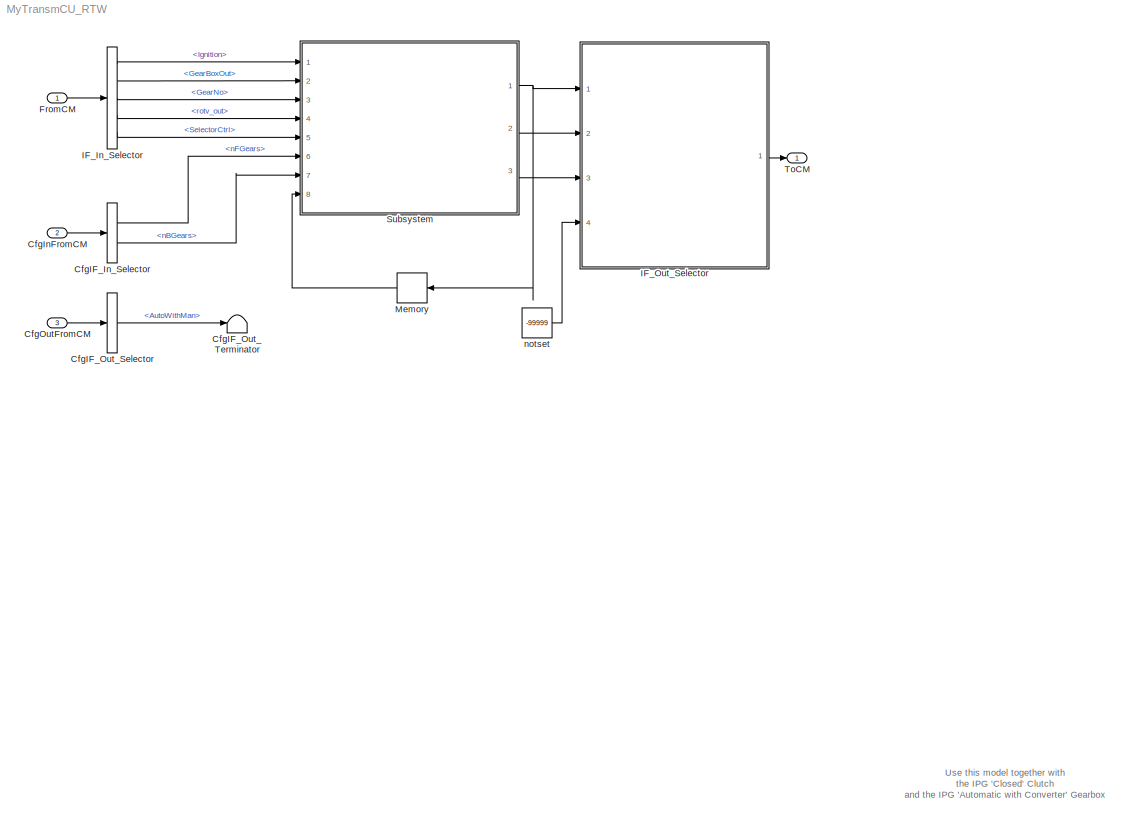
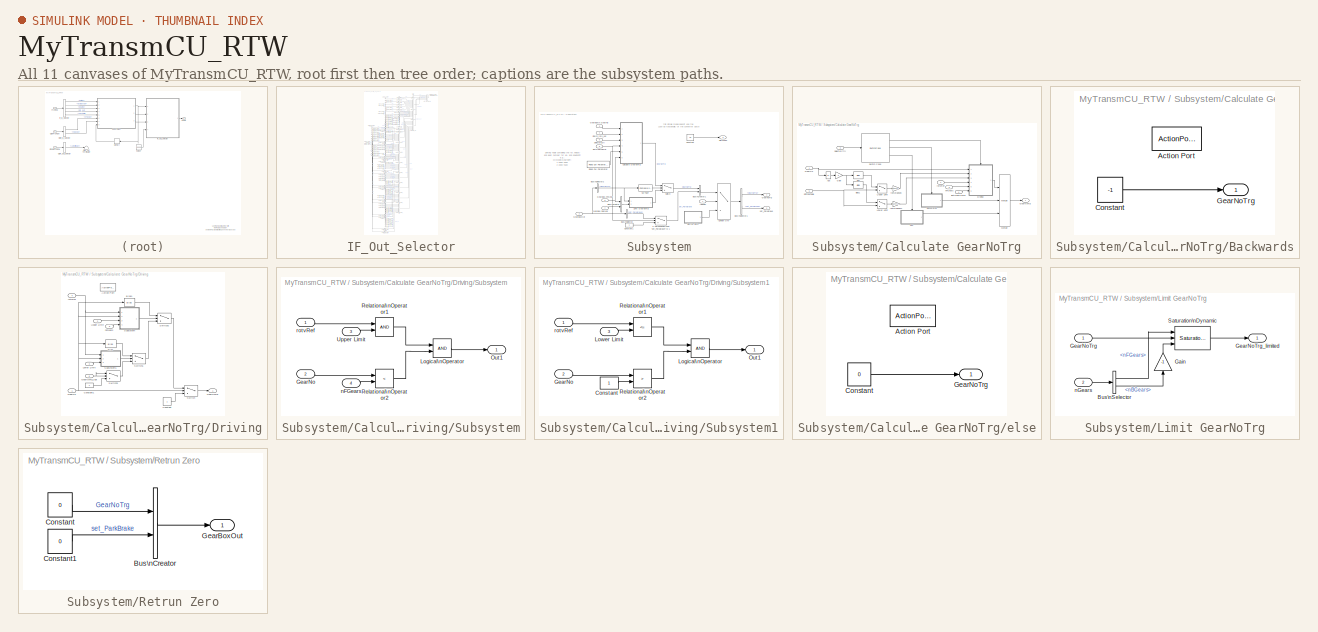
[diagram: thumbnail index - all 11 canvases of the model, root first then tree order]
MODEL MyTransmCU_RTW
KIND model
CONFIG InitFcn = vehicle = 'Car'; if ~length(which('cmself')), cmenv; end\nMyTransmCU_RTW_bus
CONFIG PreLoadFcn = vehicle = 'Car'; if ~length(which('cmself')), cmenv; end\nMyTransmCU_RTW_bus
BLOCK [BusSelector] CfgIF_In_Selector
  OutputSignals = GearBox.nFGears,GearBox.nBGears
  Ports = [1, 2]
  SID = 9
BLOCK [BusSelector] CfgIF_Out_Selector
  OutputSignals = AutoWithMan
  Ports = [1, 1]
  SID = 12
BLOCK [Terminator] CfgIF_Out_Terminator
  SID = 13
BLOCK [Inport] CfgInFromCM
  OutDataTypeStr = Bus: cmPTTransmCUCfgIn
  Port = 2
  SID = 8
BLOCK [Inport] CfgOutFromCM
  OutDataTypeStr = Bus: cmPTTransmCUCfgOut
  Port = 3
  SID = 11
BLOCK [Inport] FromCM
  OutDataTypeStr = Bus: cmPTTransmCUIn
  SID = 1
BLOCK [BusSelector] IF_In_Selector
  OutputSignals = Ignition,GearBoxOut,GearBoxIn.GearNo,GearBoxIn.Clutch.rotv_out,SelectorCtrl
  Ports = [1, 5]
  SID = 2
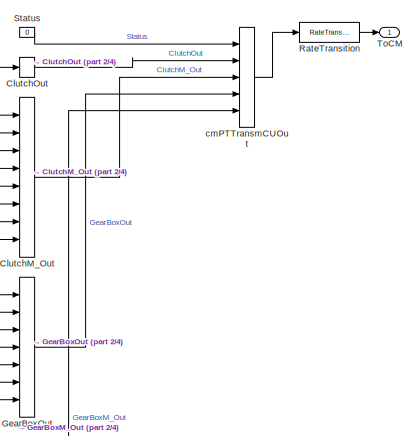
[diagram: IF_Out_Selector - part 1/4, top right region]
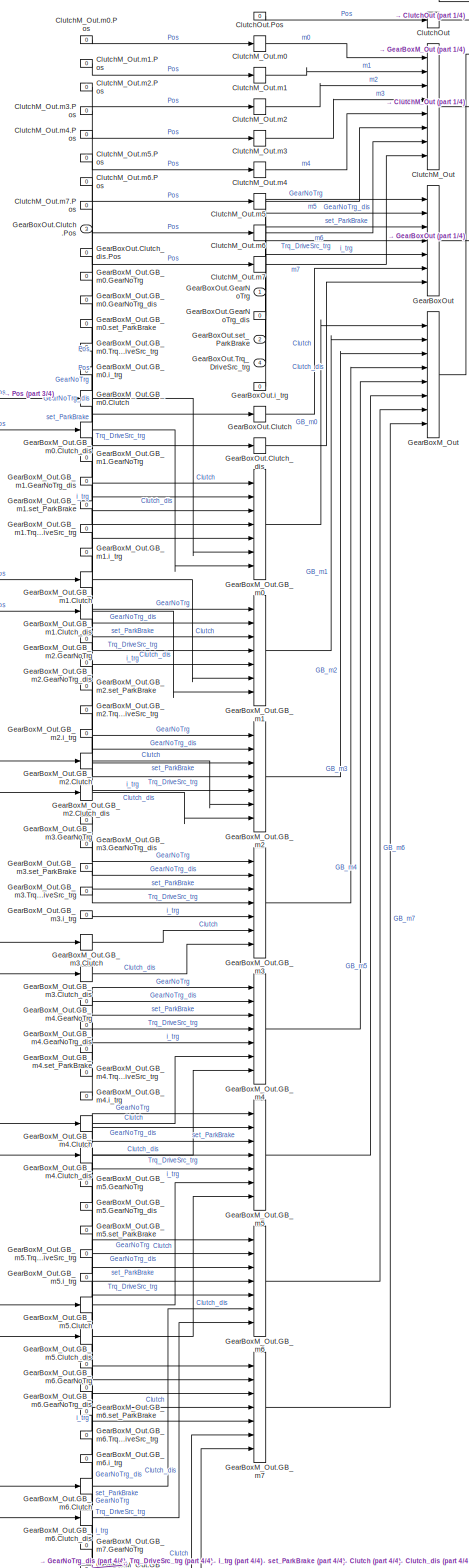
[diagram: IF_Out_Selector - part 2/4, center side, full height]
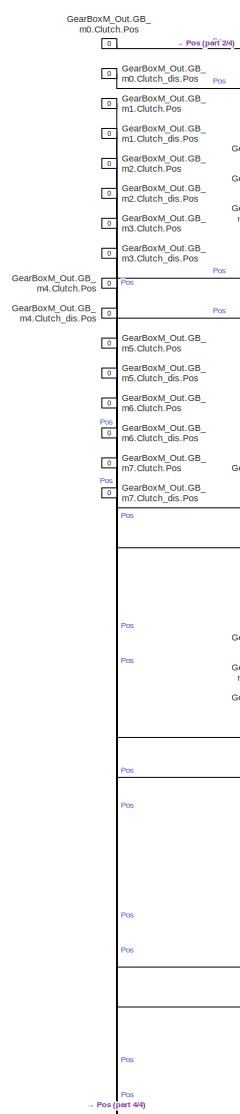
[diagram: IF_Out_Selector - part 3/4, middle left region]
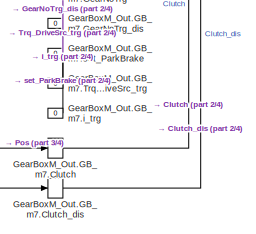
[diagram: IF_Out_Selector - part 4/4, bottom center region]
BLOCK [SubSystem] IF_Out_Selector
  OpenFcn = cmSignalSelect('SignalSelection_CB',gcb)
  Ports = [4, 1]
  RequestExecContextInheritance = off
  SID = 5
  UserData = DataTag0
  UserDataPersistent = on
BLOCK [BusCreator] IF_Out_Selector/ClutchM_Out
  InheritFromInputs = on
  Inputs = 8
  Ports = [8, 1]
  SID = 18
BLOCK [BusCreator] IF_Out_Selector/ClutchM_Out.m0
  InheritFromInputs = on
  Inputs = 1
  Ports = [1, 1]
  SID = 19
BLOCK [Constant] IF_Out_Selector/ClutchM_Out.m0.Pos
  SID = 20
  Value = 0
BLOCK [BusCreator] IF_Out_Selector/ClutchM_Out.m1
  InheritFromInputs = on
  Inputs = 1
  Ports = [1, 1]
  SID = 21
BLOCK [Constant] IF_Out_Selector/ClutchM_Out.m1.Pos
  SID = 22
  Value = 0
BLOCK [BusCreator] IF_Out_Selector/ClutchM_Out.m2
  InheritFromInputs = on
  Inputs = 1
  Ports = [1, 1]
  SID = 23
BLOCK [Constant] IF_Out_Selector/ClutchM_Out.m2.Pos
  SID = 24
  Value = 0
BLOCK [BusCreator] IF_Out_Selector/ClutchM_Out.m3
  InheritFromInputs = on
  Inputs = 1
  Ports = [1, 1]
  SID = 25
BLOCK [Constant] IF_Out_Selector/ClutchM_Out.m3.Pos
  SID = 26
  Value = 0
BLOCK [BusCreator] IF_Out_Selector/ClutchM_Out.m4
  InheritFromInputs = on
  Inputs = 1
  Ports = [1, 1]
  SID = 27
BLOCK [Constant] IF_Out_Selector/ClutchM_Out.m4.Pos
  SID = 28
  Value = 0
BLOCK [BusCreator] IF_Out_Selector/ClutchM_Out.m5
  InheritFromInputs = on
  Inputs = 1
  Ports = [1, 1]
  SID = 29
BLOCK [Constant] IF_Out_Selector/ClutchM_Out.m5.Pos
  SID = 30
  Value = 0
BLOCK [BusCreator] IF_Out_Selector/ClutchM_Out.m6
  InheritFromInputs = on
  Inputs = 1
  Ports = [1, 1]
  SID = 31
BLOCK [Constant] IF_Out_Selector/ClutchM_Out.m6.Pos
  SID = 32
  Value = 0
BLOCK [BusCreator] IF_Out_Selector/ClutchM_Out.m7
  InheritFromInputs = on
  Inputs = 1
  Ports = [1, 1]
  SID = 33
BLOCK [Constant] IF_Out_Selector/ClutchM_Out.m7.Pos
  SID = 34
  Value = 0
BLOCK [BusCreator] IF_Out_Selector/ClutchOut
  InheritFromInputs = on
  Inputs = 1
  Ports = [1, 1]
  SID = 16
BLOCK [Constant] IF_Out_Selector/ClutchOut.Pos
  SID = 17
  Value = 0
BLOCK [BusCreator] IF_Out_Selector/GearBoxM_Out
  InheritFromInputs = on
  Inputs = 8
  Ports = [8, 1]
  SID = 45
BLOCK [BusCreator] IF_Out_Selector/GearBoxM_Out.GB_m0
  InheritFromInputs = on
  Inputs = 7
  Ports = [7, 1]
  SID = 46
BLOCK [BusCreator] IF_Out_Selector/GearBoxM_Out.GB_m0.Clutch
  InheritFromInputs = on
  Inputs = 1
  Ports = [1, 1]
  SID = 52
BLOCK [Constant] IF_Out_Selector/GearBoxM_Out.GB_m0.Clutch.Pos
  SID = 53
  Value = 0
BLOCK [BusCreator] IF_Out_Selector/GearBoxM_Out.GB_m0.Clutch_dis
  InheritFromInputs = on
  Inputs = 1
  Ports = [1, 1]
  SID = 54
BLOCK [Constant] IF_Out_Selector/GearBoxM_Out.GB_m0.Clutch_dis.Pos
  SID = 55
  Value = 0
BLOCK [Constant] IF_Out_Selector/GearBoxM_Out.GB_m0.GearNoTrg
  SID = 47
  Value = 0
BLOCK [Constant] IF_Out_Selector/GearBoxM_Out.GB_m0.GearNoTrg_dis
  SID = 48
  Value = 0
BLOCK [Constant] IF_Out_Selector/GearBoxM_Out.GB_m0.Trq_DriveSrc_trg
  SID = 50
  Value = 0
BLOCK [Constant] IF_Out_Selector/GearBoxM_Out.GB_m0.i_trg
  SID = 51
  Value = 0
BLOCK [Constant] IF_Out_Selector/GearBoxM_Out.GB_m0.set_ParkBrake
  SID = 49
  Value = 0
BLOCK [BusCreator] IF_Out_Selector/GearBoxM_Out.GB_m1
  InheritFromInputs = on
  Inputs = 7
  Ports = [7, 1]
  SID = 56
BLOCK [BusCreator] IF_Out_Selector/GearBoxM_Out.GB_m1.Clutch
  InheritFromInputs = on
  Inputs = 1
  Ports = [1, 1]
  SID = 62
BLOCK [Constant] IF_Out_Selector/GearBoxM_Out.GB_m1.Clutch.Pos
  SID = 63
  Value = 0
BLOCK [BusCreator] IF_Out_Selector/GearBoxM_Out.GB_m1.Clutch_dis
  InheritFromInputs = on
  Inputs = 1
  Ports = [1, 1]
  SID = 64
BLOCK [Constant] IF_Out_Selector/GearBoxM_Out.GB_m1.Clutch_dis.Pos
  SID = 65
  Value = 0
BLOCK [Constant] IF_Out_Selector/GearBoxM_Out.GB_m1.GearNoTrg
  SID = 57
  Value = 0
BLOCK [Constant] IF_Out_Selector/GearBoxM_Out.GB_m1.GearNoTrg_dis
  SID = 58
  Value = 0
BLOCK [Constant] IF_Out_Selector/GearBoxM_Out.GB_m1.Trq_DriveSrc_trg
  SID = 60
  Value = 0
BLOCK [Constant] IF_Out_Selector/GearBoxM_Out.GB_m1.i_trg
  SID = 61
  Value = 0
BLOCK [Constant] IF_Out_Selector/GearBoxM_Out.GB_m1.set_ParkBrake
  SID = 59
  Value = 0
BLOCK [BusCreator] IF_Out_Selector/GearBoxM_Out.GB_m2
  InheritFromInputs = on
  Inputs = 7
  Ports = [7, 1]
  SID = 66
BLOCK [BusCreator] IF_Out_Selector/GearBoxM_Out.GB_m2.Clutch
  InheritFromInputs = on
  Inputs = 1
  Ports = [1, 1]
  SID = 72
BLOCK [Constant] IF_Out_Selector/GearBoxM_Out.GB_m2.Clutch.Pos
  SID = 73
  Value = 0
BLOCK [BusCreator] IF_Out_Selector/GearBoxM_Out.GB_m2.Clutch_dis
  InheritFromInputs = on
  Inputs = 1
  Ports = [1, 1]
  SID = 74
BLOCK [Constant] IF_Out_Selector/GearBoxM_Out.GB_m2.Clutch_dis.Pos
  SID = 75
  Value = 0
BLOCK [Constant] IF_Out_Selector/GearBoxM_Out.GB_m2.GearNoTrg
  SID = 67
  Value = 0
BLOCK [Constant] IF_Out_Selector/GearBoxM_Out.GB_m2.GearNoTrg_dis
  SID = 68
  Value = 0
BLOCK [Constant] IF_Out_Selector/GearBoxM_Out.GB_m2.Trq_DriveSrc_trg
  SID = 70
  Value = 0
BLOCK [Constant] IF_Out_Selector/GearBoxM_Out.GB_m2.i_trg
  SID = 71
  Value = 0
BLOCK [Constant] IF_Out_Selector/GearBoxM_Out.GB_m2.set_ParkBrake
  SID = 69
  Value = 0
BLOCK [BusCreator] IF_Out_Selector/GearBoxM_Out.GB_m3
  InheritFromInputs = on
  Inputs = 7
  Ports = [7, 1]
  SID = 76
BLOCK [BusCreator] IF_Out_Selector/GearBoxM_Out.GB_m3.Clutch
  InheritFromInputs = on
  Inputs = 1
  Ports = [1, 1]
  SID = 82
BLOCK [Constant] IF_Out_Selector/GearBoxM_Out.GB_m3.Clutch.Pos
  SID = 83
  Value = 0
BLOCK [BusCreator] IF_Out_Selector/GearBoxM_Out.GB_m3.Clutch_dis
  InheritFromInputs = on
  Inputs = 1
  Ports = [1, 1]
  SID = 84
BLOCK [Constant] IF_Out_Selector/GearBoxM_Out.GB_m3.Clutch_dis.Pos
  SID = 85
  Value = 0
BLOCK [Constant] IF_Out_Selector/GearBoxM_Out.GB_m3.GearNoTrg
  SID = 77
  Value = 0
BLOCK [Constant] IF_Out_Selector/GearBoxM_Out.GB_m3.GearNoTrg_dis
  SID = 78
  Value = 0
BLOCK [Constant] IF_Out_Selector/GearBoxM_Out.GB_m3.Trq_DriveSrc_trg
  SID = 80
  Value = 0
BLOCK [Constant] IF_Out_Selector/GearBoxM_Out.GB_m3.i_trg
  SID = 81
  Value = 0
BLOCK [Constant] IF_Out_Selector/GearBoxM_Out.GB_m3.set_ParkBrake
  SID = 79
  Value = 0
BLOCK [BusCreator] IF_Out_Selector/GearBoxM_Out.GB_m4
  InheritFromInputs = on
  Inputs = 7
  Ports = [7, 1]
  SID = 86
BLOCK [BusCreator] IF_Out_Selector/GearBoxM_Out.GB_m4.Clutch
  InheritFromInputs = on
  Inputs = 1
  Ports = [1, 1]
  SID = 92
BLOCK [Constant] IF_Out_Selector/GearBoxM_Out.GB_m4.Clutch.Pos
  SID = 93
  Value = 0
BLOCK [BusCreator] IF_Out_Selector/GearBoxM_Out.GB_m4.Clutch_dis
  InheritFromInputs = on
  Inputs = 1
  Ports = [1, 1]
  SID = 94
BLOCK [Constant] IF_Out_Selector/GearBoxM_Out.GB_m4.Clutch_dis.Pos
  SID = 95
  Value = 0
BLOCK [Constant] IF_Out_Selector/GearBoxM_Out.GB_m4.GearNoTrg
  SID = 87
  Value = 0
BLOCK [Constant] IF_Out_Selector/GearBoxM_Out.GB_m4.GearNoTrg_dis
  SID = 88
  Value = 0
BLOCK [Constant] IF_Out_Selector/GearBoxM_Out.GB_m4.Trq_DriveSrc_trg
  SID = 90
  Value = 0
BLOCK [Constant] IF_Out_Selector/GearBoxM_Out.GB_m4.i_trg
  SID = 91
  Value = 0
BLOCK [Constant] IF_Out_Selector/GearBoxM_Out.GB_m4.set_ParkBrake
  SID = 89
  Value = 0
BLOCK [BusCreator] IF_Out_Selector/GearBoxM_Out.GB_m5
  InheritFromInputs = on
  Inputs = 7
  Ports = [7, 1]
  SID = 96
BLOCK [BusCreator] IF_Out_Selector/GearBoxM_Out.GB_m5.Clutch
  InheritFromInputs = on
  Inputs = 1
  Ports = [1, 1]
  SID = 102
BLOCK [Constant] IF_Out_Selector/GearBoxM_Out.GB_m5.Clutch.Pos
  SID = 103
  Value = 0
BLOCK [BusCreator] IF_Out_Selector/GearBoxM_Out.GB_m5.Clutch_dis
  InheritFromInputs = on
  Inputs = 1
  Ports = [1, 1]
  SID = 104
BLOCK [Constant] IF_Out_Selector/GearBoxM_Out.GB_m5.Clutch_dis.Pos
  SID = 105
  Value = 0
BLOCK [Constant] IF_Out_Selector/GearBoxM_Out.GB_m5.GearNoTrg
  SID = 97
  Value = 0
BLOCK [Constant] IF_Out_Selector/GearBoxM_Out.GB_m5.GearNoTrg_dis
  SID = 98
  Value = 0
BLOCK [Constant] IF_Out_Selector/GearBoxM_Out.GB_m5.Trq_DriveSrc_trg
  SID = 100
  Value = 0
BLOCK [Constant] IF_Out_Selector/GearBoxM_Out.GB_m5.i_trg
  SID = 101
  Value = 0
BLOCK [Constant] IF_Out_Selector/GearBoxM_Out.GB_m5.set_ParkBrake
  SID = 99
  Value = 0
BLOCK [BusCreator] IF_Out_Selector/GearBoxM_Out.GB_m6
  InheritFromInputs = on
  Inputs = 7
  Ports = [7, 1]
  SID = 106
BLOCK [BusCreator] IF_Out_Selector/GearBoxM_Out.GB_m6.Clutch
  InheritFromInputs = on
  Inputs = 1
  Ports = [1, 1]
  SID = 112
BLOCK [Constant] IF_Out_Selector/GearBoxM_Out.GB_m6.Clutch.Pos
  SID = 113
  Value = 0
BLOCK [BusCreator] IF_Out_Selector/GearBoxM_Out.GB_m6.Clutch_dis
  InheritFromInputs = on
  Inputs = 1
  Ports = [1, 1]
  SID = 114
BLOCK [Constant] IF_Out_Selector/GearBoxM_Out.GB_m6.Clutch_dis.Pos
  SID = 115
  Value = 0
BLOCK [Constant] IF_Out_Selector/GearBoxM_Out.GB_m6.GearNoTrg
  SID = 107
  Value = 0
BLOCK [Constant] IF_Out_Selector/GearBoxM_Out.GB_m6.GearNoTrg_dis
  SID = 108
  Value = 0
BLOCK [Constant] IF_Out_Selector/GearBoxM_Out.GB_m6.Trq_DriveSrc_trg
  SID = 110
  Value = 0
BLOCK [Constant] IF_Out_Selector/GearBoxM_Out.GB_m6.i_trg
  SID = 111
  Value = 0
BLOCK [Constant] IF_Out_Selector/GearBoxM_Out.GB_m6.set_ParkBrake
  SID = 109
  Value = 0
BLOCK [BusCreator] IF_Out_Selector/GearBoxM_Out.GB_m7
  InheritFromInputs = on
  Inputs = 7
  Ports = [7, 1]
  SID = 116
BLOCK [BusCreator] IF_Out_Selector/GearBoxM_Out.GB_m7.Clutch
  InheritFromInputs = on
  Inputs = 1
  Ports = [1, 1]
  SID = 122
BLOCK [Constant] IF_Out_Selector/GearBoxM_Out.GB_m7.Clutch.Pos
  SID = 123
  Value = 0
BLOCK [BusCreator] IF_Out_Selector/GearBoxM_Out.GB_m7.Clutch_dis
  InheritFromInputs = on
  Inputs = 1
  Ports = [1, 1]
  SID = 124
BLOCK [Constant] IF_Out_Selector/GearBoxM_Out.GB_m7.Clutch_dis.Pos
  SID = 125
  Value = 0
BLOCK [Constant] IF_Out_Selector/GearBoxM_Out.GB_m7.GearNoTrg
  SID = 117
  Value = 0
BLOCK [Constant] IF_Out_Selector/GearBoxM_Out.GB_m7.GearNoTrg_dis
  SID = 118
  Value = 0
BLOCK [Constant] IF_Out_Selector/GearBoxM_Out.GB_m7.Trq_DriveSrc_trg
  SID = 120
  Value = 0
BLOCK [Constant] IF_Out_Selector/GearBoxM_Out.GB_m7.i_trg
  SID = 121
  Value = 0
BLOCK [Constant] IF_Out_Selector/GearBoxM_Out.GB_m7.set_ParkBrake
  SID = 119
  Value = 0
BLOCK [BusCreator] IF_Out_Selector/GearBoxOut
  InheritFromInputs = on
  Inputs = 7
  Ports = [7, 1]
  SID = 35
BLOCK [BusCreator] IF_Out_Selector/GearBoxOut.Clutch
  InheritFromInputs = on
  Inputs = 1
  Ports = [1, 1]
  SID = 41
BLOCK [Inport] IF_Out_Selector/GearBoxOut.Clutch.Pos
  Port = 3
  SID = 231
BLOCK [BusCreator] IF_Out_Selector/GearBoxOut.Clutch_dis
  InheritFromInputs = on
  Inputs = 1
  Ports = [1, 1]
  SID = 43
BLOCK [Constant] IF_Out_Selector/GearBoxOut.Clutch_dis.Pos
  SID = 44
  Value = 0
BLOCK [Inport] IF_Out_Selector/GearBoxOut.GearNoTrg
  SID = 229
BLOCK [Constant] IF_Out_Selector/GearBoxOut.GearNoTrg_dis
  SID = 37
  Value = 0
BLOCK [Inport] IF_Out_Selector/GearBoxOut.Trq_DriveSrc_trg
  Port = 4
  SID = 232
BLOCK [Constant] IF_Out_Selector/GearBoxOut.i_trg
  SID = 40
  Value = 0
BLOCK [Inport] IF_Out_Selector/GearBoxOut.set_ParkBrake
  Port = 2
  SID = 230
BLOCK [RateTransition] IF_Out_Selector/RateTransition
  OutPortSampleTime = str2num(get_param(bdroot,'FixedStep'))
  SID = 6
BLOCK [Constant] IF_Out_Selector/Status
  SID = 15
  Value = 0
BLOCK [Outport] IF_Out_Selector/ToCM
  SID = 7
BLOCK [BusCreator] IF_Out_Selector/cmPTTransmCUOut
  InheritFromInputs = on
  Inputs = 5
  Ports = [5, 1]
  SID = 14
BLOCK [Memory] Memory
  SID = 127
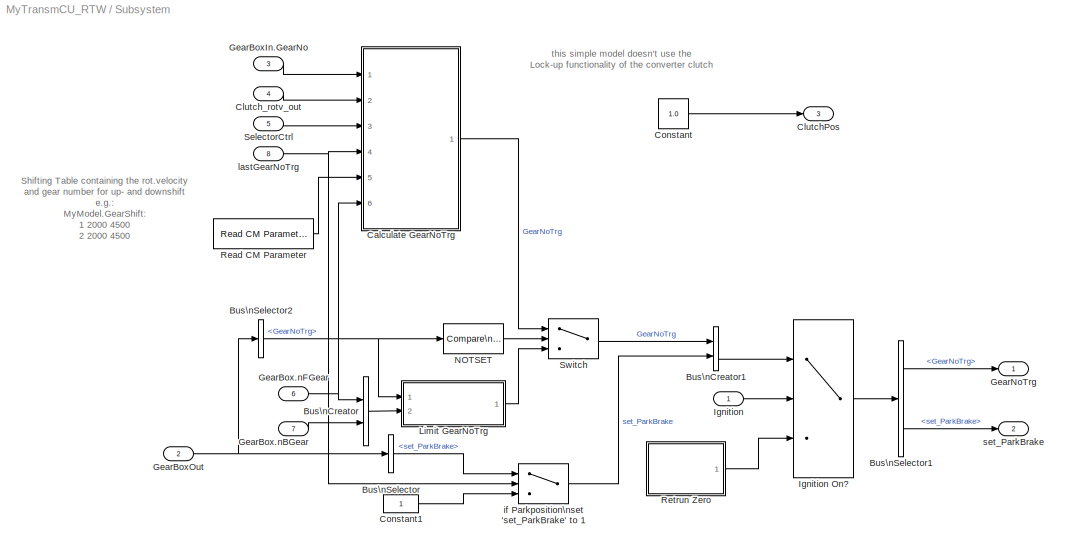
BLOCK [SubSystem] Subsystem
  Ports = [8, 3]
  RequestExecContextInheritance = off
  SID = 128
BLOCK [BusCreator] Subsystem/Bus\nCreator
  DisplayOption = bar
  InheritFromInputs = on
  Inputs = 2
  Ports = [2, 1]
  SID = 137
BLOCK [BusCreator] Subsystem/Bus\nCreator1
  DisplayOption = bar
  InheritFromInputs = on
  Inputs = 2
  Ports = [2, 1]
  SID = 138
BLOCK [BusSelector] Subsystem/Bus\nSelector
  NameLocation = top
  OutputSignals = set_ParkBrake
  Ports = [1, 1]
  SID = 139
BLOCK [BusSelector] Subsystem/Bus\nSelector1
  OutputSignals = GearNoTrg,set_ParkBrake
  Ports = [1, 2]
  SID = 140
BLOCK [BusSelector] Subsystem/Bus\nSelector2
  OutputSignals = GearNoTrg
  Ports = [1, 1]
  SID = 141
BLOCK [SubSystem] Subsystem/Calculate GearNoTrg
  Ports = [6, 1]
  RequestExecContextInheritance = off
  SID = 142
  TreatAsAtomicUnit = on
BLOCK [Abs] Subsystem/Calculate GearNoTrg/Abs
  SID = 149
  SaturateOnIntegerOverflow = off
BLOCK [SubSystem] Subsystem/Calculate GearNoTrg/Backwards
  Ports = [0, 1, 0, 0, 0, 0, 0, 1]
  RequestExecContextInheritance = off
  SID = 150
  TreatAsAtomicUnit = on
BLOCK [ActionPort] Subsystem/Calculate GearNoTrg/Backwards/Action Port
  SID = 151
BLOCK [Constant] Subsystem/Calculate GearNoTrg/Backwards/Constant
  SID = 152
  Value = -1
BLOCK [Outport] Subsystem/Calculate GearNoTrg/Backwards/GearNoTrg
  InitialOutput = -1
  SID = 153
  VectorParamsAs1DForOutWhenUnconnected = off
BLOCK [Bias] Subsystem/Calculate GearNoTrg/Bias
  Bias = -1
  SID = 154
  SaturateOnIntegerOverflow = off
BLOCK [Bias] Subsystem/Calculate GearNoTrg/Bias1
  Bias = -2
  SID = 155
  SaturateOnIntegerOverflow = off
BLOCK [SubSystem] Subsystem/Calculate GearNoTrg/Driving
  Ports = [6, 1, 0, 0, 0, 0, 0, 1]
  RequestExecContextInheritance = off
  SID = 156
  TreatAsAtomicUnit = on
BLOCK [ActionPort] Subsystem/Calculate GearNoTrg/Driving/Action Port
  SID = 163
BLOCK [Bias] Subsystem/Calculate GearNoTrg/Driving/Bias
  Bias = -1
  SID = 164
  SaturateOnIntegerOverflow = off
BLOCK [Bias] Subsystem/Calculate GearNoTrg/Driving/Bias1
  Bias = 1
  SID = 165
  SaturateOnIntegerOverflow = off
BLOCK [Constant] Subsystem/Calculate GearNoTrg/Driving/Constant
  SID = 166
BLOCK [Constant] Subsystem/Calculate GearNoTrg/Driving/Constant1
  SID = 167
BLOCK [Inport] Subsystem/Calculate GearNoTrg/Driving/GearNo
  SID = 157
BLOCK [Outport] Subsystem/Calculate GearNoTrg/Driving/GearNoTrg
  SID = 190
  VectorParamsAs1DForOutWhenUnconnected = off
BLOCK [Inport] Subsystem/Calculate GearNoTrg/Driving/GearNoTrg_last
  Port = 6
  SID = 162
BLOCK [Inport] Subsystem/Calculate GearNoTrg/Driving/Lower Limit
  Port = 3
  SID = 159
BLOCK [SubSystem] Subsystem/Calculate GearNoTrg/Driving/Subsystem
  Ports = [4, 1]
  RequestExecContextInheritance = off
  SID = 168
BLOCK [Inport] Subsystem/Calculate GearNoTrg/Driving/Subsystem/GearNo
  Port = 2
  SID = 170
BLOCK [Logic] Subsystem/Calculate GearNoTrg/Driving/Subsystem/Logical\nOperator
  AllPortsSameDT = off
  OutDataTypeStr = boolean
  Ports = [2, 1]
  SID = 173
BLOCK [Outport] Subsystem/Calculate GearNoTrg/Driving/Subsystem/Out1
  SID = 176
  VectorParamsAs1DForOutWhenUnconnected = off
BLOCK [RelationalOperator] Subsystem/Calculate GearNoTrg/Driving/Subsystem/Relational\nOperator1
  InputSameDT = off
  OutDataTypeStr = boolean
  Ports = [2, 1]
  SID = 174
BLOCK [RelationalOperator] Subsystem/Calculate GearNoTrg/Driving/Subsystem/Relational\nOperator2
  InputSameDT = off
  Operator = <
  OutDataTypeStr = boolean
  Ports = [2, 1]
  SID = 175
BLOCK [Inport] Subsystem/Calculate GearNoTrg/Driving/Subsystem/Upper Limit
  Port = 3
  SID = 171
BLOCK [Inport] Subsystem/Calculate GearNoTrg/Driving/Subsystem/nFGears
  Port = 4
  SID = 172
BLOCK [Inport] Subsystem/Calculate GearNoTrg/Driving/Subsystem/rotvRef
  SID = 169
BLOCK [SubSystem] Subsystem/Calculate GearNoTrg/Driving/Subsystem1
  Ports = [3, 1]
  RequestExecContextInheritance = off
  SID = 177
BLOCK [Constant] Subsystem/Calculate GearNoTrg/Driving/Subsystem1/Constant
  SID = 181
BLOCK [Inport] Subsystem/Calculate GearNoTrg/Driving/Subsystem1/GearNo
  Port = 2
  SID = 179
BLOCK [Logic] Subsystem/Calculate GearNoTrg/Driving/Subsystem1/Logical\nOperator
  AllPortsSameDT = off
  OutDataTypeStr = boolean
  Ports = [2, 1]
  SID = 182
BLOCK [Inport] Subsystem/Calculate GearNoTrg/Driving/Subsystem1/Lower Limit
  Port = 3
  SID = 180
BLOCK [Outport] Subsystem/Calculate GearNoTrg/Driving/Subsystem1/Out1
  SID = 185
  VectorParamsAs1DForOutWhenUnconnected = off
BLOCK [RelationalOperator] Subsystem/Calculate GearNoTrg/Driving/Subsystem1/Relational\nOperator1
  InputSameDT = off
  Operator = <=
  OutDataTypeStr = boolean
  Ports = [2, 1]
  SID = 183
BLOCK [RelationalOperator] Subsystem/Calculate GearNoTrg/Driving/Subsystem1/Relational\nOperator2
  InputSameDT = off
  Operator = >
  OutDataTypeStr = boolean
  Ports = [2, 1]
  SID = 184
BLOCK [Inport] Subsystem/Calculate GearNoTrg/Driving/Subsystem1/rotvRef
  SID = 178
BLOCK [Switch] Subsystem/Calculate GearNoTrg/Driving/Switch
  Criteria = u2 ~= 0
  InputSameDT = off
  SID = 186
  SaturateOnIntegerOverflow = off
BLOCK [Switch] Subsystem/Calculate GearNoTrg/Driving/Switch1
  Criteria = u2 ~= 0
  InputSameDT = off
  SID = 187
  SaturateOnIntegerOverflow = off
BLOCK [Switch] Subsystem/Calculate GearNoTrg/Driving/Switch2
  Criteria = u2 ~= 0
  InputSameDT = off
  SID = 188
  SaturateOnIntegerOverflow = off
BLOCK [Switch] Subsystem/Calculate GearNoTrg/Driving/Switch3
  Criteria = u2 > Threshold
  InputSameDT = off
  SID = 189
  SaturateOnIntegerOverflow = off
BLOCK [Inport] Subsystem/Calculate GearNoTrg/Driving/Upper Limit
  Port = 2
  SID = 158
BLOCK [Inport] Subsystem/Calculate GearNoTrg/Driving/nFGears
  Port = 5
  SID = 161
BLOCK [Inport] Subsystem/Calculate GearNoTrg/Driving/rotvRef
  Port = 4
  SID = 160
BLOCK [Gain] Subsystem/Calculate GearNoTrg/Gain
  Gain = 3
  SID = 191
BLOCK [Inport] Subsystem/Calculate GearNoTrg/GearNo
  SID = 143
BLOCK [Outport] Subsystem/Calculate GearNoTrg/GearNoTrg
  SID = 202
  VectorParamsAs1DForOutWhenUnconnected = off
BLOCK [MultiPortSwitch] Subsystem/Calculate GearNoTrg/Lower Limit
  DataPortOrder = Zero-based contiguous
  InputSameDT = off
  Inputs = 1
  Ports = [2, 1]
  SID = 192
  SaturateOnIntegerOverflow = off
  zeroidx = on
BLOCK [Merge] Subsystem/Calculate GearNoTrg/Merge
  Inputs = 3
  Ports = [3, 1]
  SID = 193
BLOCK [Inport] Subsystem/Calculate GearNoTrg/SelectorCtrl
  Port = 3
  SID = 145
BLOCK [Inport] Subsystem/Calculate GearNoTrg/ShiftingTable
  Port = 5
  SID = 147
BLOCK [SwitchCase] Subsystem/Calculate GearNoTrg/Switch Case
  CaseConditions = {1,-1}
  Ports = [1, 3]
  SID = 194
BLOCK [MultiPortSwitch] Subsystem/Calculate GearNoTrg/Upper Limit
  DataPortOrder = Zero-based contiguous
  InputSameDT = off
  Inputs = 1
  Ports = [2, 1]
  SID = 195
  SaturateOnIntegerOverflow = off
  zeroidx = on
BLOCK [SubSystem] Subsystem/Calculate GearNoTrg/else
  Ports = [0, 1, 0, 0, 0, 0, 0, 1]
  RequestExecContextInheritance = off
  SID = 196
  TreatAsAtomicUnit = on
BLOCK [ActionPort] Subsystem/Calculate GearNoTrg/else/Action Port
  SID = 197
BLOCK [Constant] Subsystem/Calculate GearNoTrg/else/Constant
  SID = 198
  Value = 0
BLOCK [Outport] Subsystem/Calculate GearNoTrg/else/GearNoTrg
  InitialOutput = 0
  SID = 199
  VectorParamsAs1DForOutWhenUnconnected = off
BLOCK [Inport] Subsystem/Calculate GearNoTrg/lastGearNoTrg
  Port = 4
  SID = 146
BLOCK [Inport] Subsystem/Calculate GearNoTrg/nFGears
  Port = 6
  SID = 148
BLOCK [Inport] Subsystem/Calculate GearNoTrg/rotvRef
  Port = 2
  SID = 144
BLOCK [Gain] Subsystem/Calculate GearNoTrg/rpm2radsec
  Gain = 0.104719755
  SID = 200
BLOCK [Gain] Subsystem/Calculate GearNoTrg/rpm2radsec1
  Gain = 0.104719755
  SID = 201
BLOCK [Outport] Subsystem/ClutchPos
  Port = 3
  SID = 224
  VectorParamsAs1DForOutWhenUnconnected = off
BLOCK [Inport] Subsystem/Clutch_rotv_out
  Port = 4
  SID = 132
BLOCK [Constant] Subsystem/Constant
  SID = 203
  Value = 1.0
BLOCK [Constant] Subsystem/Constant1
  SID = 204
BLOCK [Inport] Subsystem/GearBox.nBGear
  Port = 7
  SID = 135
BLOCK [Inport] Subsystem/GearBox.nFGear
  Port = 6
  SID = 134
BLOCK [Inport] Subsystem/GearBoxIn.GearNo
  Port = 3
  SID = 131
BLOCK [Inport] Subsystem/GearBoxOut
  Port = 2
  SID = 130
BLOCK [Outport] Subsystem/GearNoTrg
  SID = 222
  VectorParamsAs1DForOutWhenUnconnected = off
BLOCK [Inport] Subsystem/Ignition
  SID = 129
BLOCK [Switch] Subsystem/Ignition On?
  Criteria = u2 ~= 0
  InputSameDT = off
  SID = 205
  SaturateOnIntegerOverflow = off
BLOCK [SubSystem] Subsystem/Limit GearNoTrg
  Ports = [2, 1]
  RequestExecContextInheritance = off
  SID = 206
BLOCK [BusSelector] Subsystem/Limit GearNoTrg/Bus\nSelector
  OutputSignals = nFGears,nBGears
  Ports = [1, 2]
  SID = 209
BLOCK [Gain] Subsystem/Limit GearNoTrg/Gain
  Gain = -1
  NameLocation = right
  SID = 210
BLOCK [Inport] Subsystem/Limit GearNoTrg/GearNoTrg
  SID = 207
BLOCK [Outport] Subsystem/Limit GearNoTrg/GearNoTrg_limited
  SID = 212
  VectorParamsAs1DForOutWhenUnconnected = off
BLOCK [Reference] Subsystem/Limit GearNoTrg/Saturation\nDynamic  REF=simulink/Discontinuities/Saturation\nDynamic
  DoSatur = off
  LockScale = off
  OutDataType = sfix(16)
  OutDataTypeStr = Inherit: Same as second input
  OutMax = []
  OutMin = []
  OutScaling = 2^-10
  OutputDataTypeScalingMode = Same as second input
  Ports = [3, 1]
  RTWMemSecDataConstants = Inherit from model
  RTWMemSecDataInternal = Inherit from model
  RTWMemSecDataParameters = Inherit from model
  RTWMemSecFuncExecute = Inherit from model
  RTWMemSecFuncInitTerm = Inherit from model
  RndMeth = Floor
  SID = 211
  SourceBlock = simulink/Discontinuities/Saturation\nDynamic
  SourceProductBaseCode = SL
  SourceType = Saturation Dynamic
BLOCK [Inport] Subsystem/Limit GearNoTrg/nGears
  Port = 2
  SID = 208
BLOCK [Reference] Subsystem/NOTSET  REF=simulink/Logic and Bit\nOperations/Compare\nTo Constant
  OutDataTypeStr = uint8
  Ports = [1, 1]
  RTWMemSecDataConstants = Inherit from model
  RTWMemSecDataInternal = Inherit from model
  RTWMemSecDataParameters = Inherit from model
  RTWMemSecFuncExecute = Inherit from model
  RTWMemSecFuncInitTerm = Inherit from model
  SID = 213
  SourceBlock = simulink/Logic and Bit\nOperations/Compare\nTo Constant
  SourceProductBaseCode = SL
  SourceType = Compare To Constant
  ZeroCross = on
  const = -99999
  relop = ==
BLOCK [Reference] Subsystem/Read CM Parameter  REF=CarMaker4SL/Read CM Parameter
  MultiThreadCoSim = auto
  Ports = [0, 1]
  SID = 214
  SourceBlock = CarMaker4SL/Read CM Parameter
  SourceProductName = CarMaker4SL
  SourceType = Read CarMaker Infofile Parameter
  xdefaults = 0
  xfile = Vehicle
  xkey = MyModel.GearShift
  xmuxed = on
  xnout = 80
  xstime = Continuous
BLOCK [SubSystem] Subsystem/Retrun Zero
  Ports = [0, 1]
  RequestExecContextInheritance = off
  SID = 215
  TreatAsAtomicUnit = on
BLOCK [BusCreator] Subsystem/Retrun Zero/Bus\nCreator
  DisplayOption = bar
  InheritFromInputs = on
  Inputs = 2
  Ports = [2, 1]
  SID = 216
BLOCK [Constant] Subsystem/Retrun Zero/Constant
  SID = 217
  Value = 0
BLOCK [Constant] Subsystem/Retrun Zero/Constant1
  SID = 218
  Value = 0
BLOCK [Outport] Subsystem/Retrun Zero/GearBoxOut
  SID = 219
  VectorParamsAs1DForOutWhenUnconnected = off
BLOCK [Inport] Subsystem/SelectorCtrl
  Port = 5
  SID = 133
BLOCK [Switch] Subsystem/Switch
  Criteria = u2 ~= 0
  InputSameDT = off
  SID = 220
  SaturateOnIntegerOverflow = off
BLOCK [Switch] Subsystem/if Parkposition\nset 'set_ParkBrake' to 1
  Criteria = u2 ~= 0
  InputSameDT = off
  SID = 221
  SaturateOnIntegerOverflow = off
BLOCK [Inport] Subsystem/lastGearNoTrg
  Port = 8
  SID = 136
BLOCK [Outport] Subsystem/set_ParkBrake
  Port = 2
  SID = 223
  VectorParamsAs1DForOutWhenUnconnected = off
BLOCK [Outport] ToCM
  OutDataTypeStr = Bus: cmPTTransmCUOut
  SID = 4
BLOCK [Constant] notset
  SID = 227
  Value = -99999
ANNOTATION (root): Use this model together with \nthe IPG 'Closed' Clutch\nand the IPG 'Automatic with Converter' Gearbox
ANNOTATION Subsystem: Shifting Table containing the rot.velocity\nand gear number for up- and downshift\ne.g.:\nMyModel.GearShift:\n 1 2000 4500\n 2 2000 4500\n 3 2000 4500\n 4 2000 4500\n 5 2000 5000
ANNOTATION Subsystem: this simple model doesn't use the\nLock-up functionality of the converter clutch
LINE CfgIF_In_Selector:1 -> Subsystem:6
LINE CfgIF_In_Selector:2 -> Subsystem:7
LINE CfgIF_Out_Selector:1 -> CfgIF_Out_Terminator:1
LINE CfgInFromCM:1 -> CfgIF_In_Selector:1
LINE CfgOutFromCM:1 -> CfgIF_Out_Selector:1
LINE FromCM:1 -> IF_In_Selector:1
LINE IF_In_Selector:1 -> Subsystem:1
LINE IF_In_Selector:2 -> Subsystem:2
LINE IF_In_Selector:3 -> Subsystem:3
LINE IF_In_Selector:4 -> Subsystem:4
LINE IF_In_Selector:5 -> Subsystem:5
LINE IF_Out_Selector/ClutchM_Out.m0.Pos:1 -> IF_Out_Selector/ClutchM_Out.m0:1
LINE IF_Out_Selector/ClutchM_Out.m0:1 -> IF_Out_Selector/ClutchM_Out:1
LINE IF_Out_Selector/ClutchM_Out.m1.Pos:1 -> IF_Out_Selector/ClutchM_Out.m1:1
LINE IF_Out_Selector/ClutchM_Out.m1:1 -> IF_Out_Selector/ClutchM_Out:2
LINE IF_Out_Selector/ClutchM_Out.m2.Pos:1 -> IF_Out_Selector/ClutchM_Out.m2:1
LINE IF_Out_Selector/ClutchM_Out.m2:1 -> IF_Out_Selector/ClutchM_Out:3
LINE IF_Out_Selector/ClutchM_Out.m3.Pos:1 -> IF_Out_Selector/ClutchM_Out.m3:1
LINE IF_Out_Selector/ClutchM_Out.m3:1 -> IF_Out_Selector/ClutchM_Out:4
LINE IF_Out_Selector/ClutchM_Out.m4.Pos:1 -> IF_Out_Selector/ClutchM_Out.m4:1
LINE IF_Out_Selector/ClutchM_Out.m4:1 -> IF_Out_Selector/ClutchM_Out:5
LINE IF_Out_Selector/ClutchM_Out.m5.Pos:1 -> IF_Out_Selector/ClutchM_Out.m5:1
LINE IF_Out_Selector/ClutchM_Out.m5:1 -> IF_Out_Selector/ClutchM_Out:6
LINE IF_Out_Selector/ClutchM_Out.m6.Pos:1 -> IF_Out_Selector/ClutchM_Out.m6:1
LINE IF_Out_Selector/ClutchM_Out.m6:1 -> IF_Out_Selector/ClutchM_Out:7
LINE IF_Out_Selector/ClutchM_Out.m7.Pos:1 -> IF_Out_Selector/ClutchM_Out.m7:1
LINE IF_Out_Selector/ClutchM_Out.m7:1 -> IF_Out_Selector/ClutchM_Out:8
LINE IF_Out_Selector/ClutchM_Out:1 -> IF_Out_Selector/cmPTTransmCUOut:3
LINE IF_Out_Selector/ClutchOut.Pos:1 -> IF_Out_Selector/ClutchOut:1
LINE IF_Out_Selector/ClutchOut:1 -> IF_Out_Selector/cmPTTransmCUOut:2
LINE IF_Out_Selector/GearBoxM_Out.GB_m0.Clutch.Pos:1 -> IF_Out_Selector/GearBoxM_Out.GB_m0.Clutch:1
LINE IF_Out_Selector/GearBoxM_Out.GB_m0.Clutch:1 -> IF_Out_Selector/GearBoxM_Out.GB_m0:6
LINE IF_Out_Selector/GearBoxM_Out.GB_m0.Clutch_dis.Pos:1 -> IF_Out_Selector/GearBoxM_Out.GB_m0.Clutch_dis:1
LINE IF_Out_Selector/GearBoxM_Out.GB_m0.Clutch_dis:1 -> IF_Out_Selector/GearBoxM_Out.GB_m0:7
LINE IF_Out_Selector/GearBoxM_Out.GB_m0.GearNoTrg:1 -> IF_Out_Selector/GearBoxM_Out.GB_m0:1
LINE IF_Out_Selector/GearBoxM_Out.GB_m0.GearNoTrg_dis:1 -> IF_Out_Selector/GearBoxM_Out.GB_m0:2
LINE IF_Out_Selector/GearBoxM_Out.GB_m0.Trq_DriveSrc_trg:1 -> IF_Out_Selector/GearBoxM_Out.GB_m0:4
LINE IF_Out_Selector/GearBoxM_Out.GB_m0.i_trg:1 -> IF_Out_Selector/GearBoxM_Out.GB_m0:5
LINE IF_Out_Selector/GearBoxM_Out.GB_m0.set_ParkBrake:1 -> IF_Out_Selector/GearBoxM_Out.GB_m0:3
LINE IF_Out_Selector/GearBoxM_Out.GB_m0:1 -> IF_Out_Selector/GearBoxM_Out:1
LINE IF_Out_Selector/GearBoxM_Out.GB_m1.Clutch.Pos:1 -> IF_Out_Selector/GearBoxM_Out.GB_m1.Clutch:1
LINE IF_Out_Selector/GearBoxM_Out.GB_m1.Clutch:1 -> IF_Out_Selector/GearBoxM_Out.GB_m1:6
LINE IF_Out_Selector/GearBoxM_Out.GB_m1.Clutch_dis.Pos:1 -> IF_Out_Selector/GearBoxM_Out.GB_m1.Clutch_dis:1
LINE IF_Out_Selector/GearBoxM_Out.GB_m1.Clutch_dis:1 -> IF_Out_Selector/GearBoxM_Out.GB_m1:7
LINE IF_Out_Selector/GearBoxM_Out.GB_m1.GearNoTrg:1 -> IF_Out_Selector/GearBoxM_Out.GB_m1:1
LINE IF_Out_Selector/GearBoxM_Out.GB_m1.GearNoTrg_dis:1 -> IF_Out_Selector/GearBoxM_Out.GB_m1:2
LINE IF_Out_Selector/GearBoxM_Out.GB_m1.Trq_DriveSrc_trg:1 -> IF_Out_Selector/GearBoxM_Out.GB_m1:4
LINE IF_Out_Selector/GearBoxM_Out.GB_m1.i_trg:1 -> IF_Out_Selector/GearBoxM_Out.GB_m1:5
LINE IF_Out_Selector/GearBoxM_Out.GB_m1.set_ParkBrake:1 -> IF_Out_Selector/GearBoxM_Out.GB_m1:3
LINE IF_Out_Selector/GearBoxM_Out.GB_m1:1 -> IF_Out_Selector/GearBoxM_Out:2
LINE IF_Out_Selector/GearBoxM_Out.GB_m2.Clutch.Pos:1 -> IF_Out_Selector/GearBoxM_Out.GB_m2.Clutch:1
LINE IF_Out_Selector/GearBoxM_Out.GB_m2.Clutch:1 -> IF_Out_Selector/GearBoxM_Out.GB_m2:6
LINE IF_Out_Selector/GearBoxM_Out.GB_m2.Clutch_dis.Pos:1 -> IF_Out_Selector/GearBoxM_Out.GB_m2.Clutch_dis:1
LINE IF_Out_Selector/GearBoxM_Out.GB_m2.Clutch_dis:1 -> IF_Out_Selector/GearBoxM_Out.GB_m2:7
LINE IF_Out_Selector/GearBoxM_Out.GB_m2.GearNoTrg:1 -> IF_Out_Selector/GearBoxM_Out.GB_m2:1
LINE IF_Out_Selector/GearBoxM_Out.GB_m2.GearNoTrg_dis:1 -> IF_Out_Selector/GearBoxM_Out.GB_m2:2
LINE IF_Out_Selector/GearBoxM_Out.GB_m2.Trq_DriveSrc_trg:1 -> IF_Out_Selector/GearBoxM_Out.GB_m2:4
LINE IF_Out_Selector/GearBoxM_Out.GB_m2.i_trg:1 -> IF_Out_Selector/GearBoxM_Out.GB_m2:5
LINE IF_Out_Selector/GearBoxM_Out.GB_m2.set_ParkBrake:1 -> IF_Out_Selector/GearBoxM_Out.GB_m2:3
LINE IF_Out_Selector/GearBoxM_Out.GB_m2:1 -> IF_Out_Selector/GearBoxM_Out:3
LINE IF_Out_Selector/GearBoxM_Out.GB_m3.Clutch.Pos:1 -> IF_Out_Selector/GearBoxM_Out.GB_m3.Clutch:1
LINE IF_Out_Selector/GearBoxM_Out.GB_m3.Clutch:1 -> IF_Out_Selector/GearBoxM_Out.GB_m3:6
LINE IF_Out_Selector/GearBoxM_Out.GB_m3.Clutch_dis.Pos:1 -> IF_Out_Selector/GearBoxM_Out.GB_m3.Clutch_dis:1
LINE IF_Out_Selector/GearBoxM_Out.GB_m3.Clutch_dis:1 -> IF_Out_Selector/GearBoxM_Out.GB_m3:7
LINE IF_Out_Selector/GearBoxM_Out.GB_m3.GearNoTrg:1 -> IF_Out_Selector/GearBoxM_Out.GB_m3:1
LINE IF_Out_Selector/GearBoxM_Out.GB_m3.GearNoTrg_dis:1 -> IF_Out_Selector/GearBoxM_Out.GB_m3:2
LINE IF_Out_Selector/GearBoxM_Out.GB_m3.Trq_DriveSrc_trg:1 -> IF_Out_Selector/GearBoxM_Out.GB_m3:4
LINE IF_Out_Selector/GearBoxM_Out.GB_m3.i_trg:1 -> IF_Out_Selector/GearBoxM_Out.GB_m3:5
LINE IF_Out_Selector/GearBoxM_Out.GB_m3.set_ParkBrake:1 -> IF_Out_Selector/GearBoxM_Out.GB_m3:3
LINE IF_Out_Selector/GearBoxM_Out.GB_m3:1 -> IF_Out_Selector/GearBoxM_Out:4
LINE IF_Out_Selector/GearBoxM_Out.GB_m4.Clutch.Pos:1 -> IF_Out_Selector/GearBoxM_Out.GB_m4.Clutch:1
LINE IF_Out_Selector/GearBoxM_Out.GB_m4.Clutch:1 -> IF_Out_Selector/GearBoxM_Out.GB_m4:6
LINE IF_Out_Selector/GearBoxM_Out.GB_m4.Clutch_dis.Pos:1 -> IF_Out_Selector/GearBoxM_Out.GB_m4.Clutch_dis:1
LINE IF_Out_Selector/GearBoxM_Out.GB_m4.Clutch_dis:1 -> IF_Out_Selector/GearBoxM_Out.GB_m4:7
LINE IF_Out_Selector/GearBoxM_Out.GB_m4.GearNoTrg:1 -> IF_Out_Selector/GearBoxM_Out.GB_m4:1
LINE IF_Out_Selector/GearBoxM_Out.GB_m4.GearNoTrg_dis:1 -> IF_Out_Selector/GearBoxM_Out.GB_m4:2
LINE IF_Out_Selector/GearBoxM_Out.GB_m4.Trq_DriveSrc_trg:1 -> IF_Out_Selector/GearBoxM_Out.GB_m4:4
LINE IF_Out_Selector/GearBoxM_Out.GB_m4.i_trg:1 -> IF_Out_Selector/GearBoxM_Out.GB_m4:5
LINE IF_Out_Selector/GearBoxM_Out.GB_m4.set_ParkBrake:1 -> IF_Out_Selector/GearBoxM_Out.GB_m4:3
LINE IF_Out_Selector/GearBoxM_Out.GB_m4:1 -> IF_Out_Selector/GearBoxM_Out:5
LINE IF_Out_Selector/GearBoxM_Out.GB_m5.Clutch.Pos:1 -> IF_Out_Selector/GearBoxM_Out.GB_m5.Clutch:1
LINE IF_Out_Selector/GearBoxM_Out.GB_m5.Clutch:1 -> IF_Out_Selector/GearBoxM_Out.GB_m5:6
LINE IF_Out_Selector/GearBoxM_Out.GB_m5.Clutch_dis.Pos:1 -> IF_Out_Selector/GearBoxM_Out.GB_m5.Clutch_dis:1
LINE IF_Out_Selector/GearBoxM_Out.GB_m5.Clutch_dis:1 -> IF_Out_Selector/GearBoxM_Out.GB_m5:7
LINE IF_Out_Selector/GearBoxM_Out.GB_m5.GearNoTrg:1 -> IF_Out_Selector/GearBoxM_Out.GB_m5:1
LINE IF_Out_Selector/GearBoxM_Out.GB_m5.GearNoTrg_dis:1 -> IF_Out_Selector/GearBoxM_Out.GB_m5:2
LINE IF_Out_Selector/GearBoxM_Out.GB_m5.Trq_DriveSrc_trg:1 -> IF_Out_Selector/GearBoxM_Out.GB_m5:4
LINE IF_Out_Selector/GearBoxM_Out.GB_m5.i_trg:1 -> IF_Out_Selector/GearBoxM_Out.GB_m5:5
LINE IF_Out_Selector/GearBoxM_Out.GB_m5.set_ParkBrake:1 -> IF_Out_Selector/GearBoxM_Out.GB_m5:3
LINE IF_Out_Selector/GearBoxM_Out.GB_m5:1 -> IF_Out_Selector/GearBoxM_Out:6
LINE IF_Out_Selector/GearBoxM_Out.GB_m6.Clutch.Pos:1 -> IF_Out_Selector/GearBoxM_Out.GB_m6.Clutch:1
LINE IF_Out_Selector/GearBoxM_Out.GB_m6.Clutch:1 -> IF_Out_Selector/GearBoxM_Out.GB_m6:6
LINE IF_Out_Selector/GearBoxM_Out.GB_m6.Clutch_dis.Pos:1 -> IF_Out_Selector/GearBoxM_Out.GB_m6.Clutch_dis:1
LINE IF_Out_Selector/GearBoxM_Out.GB_m6.Clutch_dis:1 -> IF_Out_Selector/GearBoxM_Out.GB_m6:7
LINE IF_Out_Selector/GearBoxM_Out.GB_m6.GearNoTrg:1 -> IF_Out_Selector/GearBoxM_Out.GB_m6:1
LINE IF_Out_Selector/GearBoxM_Out.GB_m6.GearNoTrg_dis:1 -> IF_Out_Selector/GearBoxM_Out.GB_m6:2
LINE IF_Out_Selector/GearBoxM_Out.GB_m6.Trq_DriveSrc_trg:1 -> IF_Out_Selector/GearBoxM_Out.GB_m6:4
LINE IF_Out_Selector/GearBoxM_Out.GB_m6.i_trg:1 -> IF_Out_Selector/GearBoxM_Out.GB_m6:5
LINE IF_Out_Selector/GearBoxM_Out.GB_m6.set_ParkBrake:1 -> IF_Out_Selector/GearBoxM_Out.GB_m6:3
LINE IF_Out_Selector/GearBoxM_Out.GB_m6:1 -> IF_Out_Selector/GearBoxM_Out:7
LINE IF_Out_Selector/GearBoxM_Out.GB_m7.Clutch.Pos:1 -> IF_Out_Selector/GearBoxM_Out.GB_m7.Clutch:1
LINE IF_Out_Selector/GearBoxM_Out.GB_m7.Clutch:1 -> IF_Out_Selector/GearBoxM_Out.GB_m7:6
LINE IF_Out_Selector/GearBoxM_Out.GB_m7.Clutch_dis.Pos:1 -> IF_Out_Selector/GearBoxM_Out.GB_m7.Clutch_dis:1
LINE IF_Out_Selector/GearBoxM_Out.GB_m7.Clutch_dis:1 -> IF_Out_Selector/GearBoxM_Out.GB_m7:7
LINE IF_Out_Selector/GearBoxM_Out.GB_m7.GearNoTrg:1 -> IF_Out_Selector/GearBoxM_Out.GB_m7:1
LINE IF_Out_Selector/GearBoxM_Out.GB_m7.GearNoTrg_dis:1 -> IF_Out_Selector/GearBoxM_Out.GB_m7:2
LINE IF_Out_Selector/GearBoxM_Out.GB_m7.Trq_DriveSrc_trg:1 -> IF_Out_Selector/GearBoxM_Out.GB_m7:4
LINE IF_Out_Selector/GearBoxM_Out.GB_m7.i_trg:1 -> IF_Out_Selector/GearBoxM_Out.GB_m7:5
LINE IF_Out_Selector/GearBoxM_Out.GB_m7.set_ParkBrake:1 -> IF_Out_Selector/GearBoxM_Out.GB_m7:3
LINE IF_Out_Selector/GearBoxM_Out.GB_m7:1 -> IF_Out_Selector/GearBoxM_Out:8
LINE IF_Out_Selector/GearBoxM_Out:1 -> IF_Out_Selector/cmPTTransmCUOut:5
LINE IF_Out_Selector/GearBoxOut.Clutch.Pos:1 -> IF_Out_Selector/GearBoxOut.Clutch:1
LINE IF_Out_Selector/GearBoxOut.Clutch:1 -> IF_Out_Selector/GearBoxOut:6
LINE IF_Out_Selector/GearBoxOut.Clutch_dis.Pos:1 -> IF_Out_Selector/GearBoxOut.Clutch_dis:1
LINE IF_Out_Selector/GearBoxOut.Clutch_dis:1 -> IF_Out_Selector/GearBoxOut:7
LINE IF_Out_Selector/GearBoxOut.GearNoTrg:1 -> IF_Out_Selector/GearBoxOut:1
LINE IF_Out_Selector/GearBoxOut.GearNoTrg_dis:1 -> IF_Out_Selector/GearBoxOut:2
LINE IF_Out_Selector/GearBoxOut.Trq_DriveSrc_trg:1 -> IF_Out_Selector/GearBoxOut:4
LINE IF_Out_Selector/GearBoxOut.i_trg:1 -> IF_Out_Selector/GearBoxOut:5
LINE IF_Out_Selector/GearBoxOut.set_ParkBrake:1 -> IF_Out_Selector/GearBoxOut:3
LINE IF_Out_Selector/GearBoxOut:1 -> IF_Out_Selector/cmPTTransmCUOut:4
LINE IF_Out_Selector/RateTransition:1 -> IF_Out_Selector/ToCM:1
LINE IF_Out_Selector/Status:1 -> IF_Out_Selector/cmPTTransmCUOut:1
LINE IF_Out_Selector/cmPTTransmCUOut:1 -> IF_Out_Selector/RateTransition:1
LINE IF_Out_Selector:1 -> ToCM:1
LINE Memory:1 -> Subsystem:8
LINE Subsystem/Bus\nCreator1:1 -> Subsystem/Ignition On?:1
LINE Subsystem/Bus\nCreator:1 -> Subsystem/Limit GearNoTrg:2
LINE Subsystem/Bus\nSelector1:1 -> Subsystem/GearNoTrg:1
LINE Subsystem/Bus\nSelector1:2 -> Subsystem/set_ParkBrake:1
NET Subsystem/Bus\nSelector2:1 -> Subsystem/Limit GearNoTrg:1, Subsystem/NOTSET:1
LINE Subsystem/Bus\nSelector:1 -> Subsystem/if Parkposition\nset 'set_ParkBrake' to 1:1
LINE Subsystem/Calculate GearNoTrg/Abs:1 -> Subsystem/Calculate GearNoTrg/Gain:1
LINE Subsystem/Calculate GearNoTrg/Backwards/Constant:1 -> Subsystem/Calculate GearNoTrg/Backwards/GearNoTrg:1
LINE Subsystem/Calculate GearNoTrg/Backwards:1 -> Subsystem/Calculate GearNoTrg/Merge:2
LINE Subsystem/Calculate GearNoTrg/Bias1:1 -> Subsystem/Calculate GearNoTrg/Lower Limit:1
LINE Subsystem/Calculate GearNoTrg/Bias:1 -> Subsystem/Calculate GearNoTrg/Upper Limit:1
LINE Subsystem/Calculate GearNoTrg/Driving/Bias1:1 -> Subsystem/Calculate GearNoTrg/Driving/Switch2:1
LINE Subsystem/Calculate GearNoTrg/Driving/Bias:1 -> Subsystem/Calculate GearNoTrg/Driving/Switch1:1
LINE Subsystem/Calculate GearNoTrg/Driving/Constant1:1 -> Subsystem/Calculate GearNoTrg/Driving/Switch3:3
LINE Subsystem/Calculate GearNoTrg/Driving/Constant:1 -> Subsystem/Calculate GearNoTrg/Driving/Switch:3
NET Subsystem/Calculate GearNoTrg/Driving/GearNo:1 -> Subsystem/Calculate GearNoTrg/Driving/Bias1:1, Subsystem/Calculate GearNoTrg/Driving/Bias:1, Subsystem/Calculate GearNoTrg/Driving/Subsystem1:2, Subsystem/Calculate GearNoTrg/Driving/Subsystem:2, Subsystem/Calculate GearNoTrg/Driving/Switch:2
NET Subsystem/Calculate GearNoTrg/Driving/GearNoTrg_last:1 -> Subsystem/Calculate GearNoTrg/Driving/Switch3:1, Subsystem/Calculate GearNoTrg/Driving/Switch3:2
LINE Subsystem/Calculate GearNoTrg/Driving/Lower Limit:1 -> Subsystem/Calculate GearNoTrg/Driving/Subsystem1:3
LINE Subsystem/Calculate GearNoTrg/Driving/Subsystem/GearNo:1 -> Subsystem/Calculate GearNoTrg/Driving/Subsystem/Relational\nOperator2:1
LINE Subsystem/Calculate GearNoTrg/Driving/Subsystem/Logical\nOperator:1 -> Subsystem/Calculate GearNoTrg/Driving/Subsystem/Out1:1
LINE Subsystem/Calculate GearNoTrg/Driving/Subsystem/Relational\nOperator1:1 -> Subsystem/Calculate GearNoTrg/Driving/Subsystem/Logical\nOperator:1
LINE Subsystem/Calculate GearNoTrg/Driving/Subsystem/Relational\nOperator2:1 -> Subsystem/Calculate GearNoTrg/Driving/Subsystem/Logical\nOperator:2
LINE Subsystem/Calculate GearNoTrg/Driving/Subsystem/Upper Limit:1 -> Subsystem/Calculate GearNoTrg/Driving/Subsystem/Relational\nOperator1:2
LINE Subsystem/Calculate GearNoTrg/Driving/Subsystem/nFGears:1 -> Subsystem/Calculate GearNoTrg/Driving/Subsystem/Relational\nOperator2:2
LINE Subsystem/Calculate GearNoTrg/Driving/Subsystem/rotvRef:1 -> Subsystem/Calculate GearNoTrg/Driving/Subsystem/Relational\nOperator1:1
LINE Subsystem/Calculate GearNoTrg/Driving/Subsystem1/Constant:1 -> Subsystem/Calculate GearNoTrg/Driving/Subsystem1/Relational\nOperator2:2
LINE Subsystem/Calculate GearNoTrg/Driving/Subsystem1/GearNo:1 -> Subsystem/Calculate GearNoTrg/Driving/Subsystem1/Relational\nOperator2:1
LINE Subsystem/Calculate GearNoTrg/Driving/Subsystem1/Logical\nOperator:1 -> Subsystem/Calculate GearNoTrg/Driving/Subsystem1/Out1:1
LINE Subsystem/Calculate GearNoTrg/Driving/Subsystem1/Lower Limit:1 -> Subsystem/Calculate GearNoTrg/Driving/Subsystem1/Relational\nOperator1:2
LINE Subsystem/Calculate GearNoTrg/Driving/Subsystem1/Relational\nOperator1:1 -> Subsystem/Calculate GearNoTrg/Driving/Subsystem1/Logical\nOperator:1
LINE Subsystem/Calculate GearNoTrg/Driving/Subsystem1/Relational\nOperator2:1 -> Subsystem/Calculate GearNoTrg/Driving/Subsystem1/Logical\nOperator:2
LINE Subsystem/Calculate GearNoTrg/Driving/Subsystem1/rotvRef:1 -> Subsystem/Calculate GearNoTrg/Driving/Subsystem1/Relational\nOperator1:1
LINE Subsystem/Calculate GearNoTrg/Driving/Subsystem1:1 -> Subsystem/Calculate GearNoTrg/Driving/Switch1:2
LINE Subsystem/Calculate GearNoTrg/Driving/Subsystem:1 -> Subsystem/Calculate GearNoTrg/Driving/Switch2:2
LINE Subsystem/Calculate GearNoTrg/Driving/Switch1:1 -> Subsystem/Calculate GearNoTrg/Driving/Switch2:3
LINE Subsystem/Calculate GearNoTrg/Driving/Switch2:1 -> Subsystem/Calculate GearNoTrg/Driving/Switch:1
LINE Subsystem/Calculate GearNoTrg/Driving/Switch3:1 -> Subsystem/Calculate GearNoTrg/Driving/Switch1:3
LINE Subsystem/Calculate GearNoTrg/Driving/Switch:1 -> Subsystem/Calculate GearNoTrg/Driving/GearNoTrg:1
LINE Subsystem/Calculate GearNoTrg/Driving/Upper Limit:1 -> Subsystem/Calculate GearNoTrg/Driving/Subsystem:3
LINE Subsystem/Calculate GearNoTrg/Driving/nFGears:1 -> Subsystem/Calculate GearNoTrg/Driving/Subsystem:4
NET Subsystem/Calculate GearNoTrg/Driving/rotvRef:1 -> Subsystem/Calculate GearNoTrg/Driving/Subsystem1:1, Subsystem/Calculate GearNoTrg/Driving/Subsystem:1
LINE Subsystem/Calculate GearNoTrg/Driving:1 -> Subsystem/Calculate GearNoTrg/Merge:1
NET Subsystem/Calculate GearNoTrg/Gain:1 -> Subsystem/Calculate GearNoTrg/Bias1:1, Subsystem/Calculate GearNoTrg/Bias:1
NET Subsystem/Calculate GearNoTrg/GearNo:1 -> Subsystem/Calculate GearNoTrg/Abs:1, Subsystem/Calculate GearNoTrg/Driving:1
LINE Subsystem/Calculate GearNoTrg/Lower Limit:1 -> Subsystem/Calculate GearNoTrg/rpm2radsec1:1
LINE Subsystem/Calculate GearNoTrg/Merge:1 -> Subsystem/Calculate GearNoTrg/GearNoTrg:1
LINE Subsystem/Calculate GearNoTrg/SelectorCtrl:1 -> Subsystem/Calculate GearNoTrg/Switch Case:1
NET Subsystem/Calculate GearNoTrg/ShiftingTable:1 -> Subsystem/Calculate GearNoTrg/Lower Limit:2, Subsystem/Calculate GearNoTrg/Upper Limit:2
LINE Subsystem/Calculate GearNoTrg/Switch Case:1 -> Subsystem/Calculate GearNoTrg/Driving:ifaction
LINE Subsystem/Calculate GearNoTrg/Switch Case:2 -> Subsystem/Calculate GearNoTrg/Backwards:ifaction
LINE Subsystem/Calculate GearNoTrg/Switch Case:3 -> Subsystem/Calculate GearNoTrg/else:ifaction
LINE Subsystem/Calculate GearNoTrg/Upper Limit:1 -> Subsystem/Calculate GearNoTrg/rpm2radsec:1
LINE Subsystem/Calculate GearNoTrg/else/Constant:1 -> Subsystem/Calculate GearNoTrg/else/GearNoTrg:1
LINE Subsystem/Calculate GearNoTrg/else:1 -> Subsystem/Calculate GearNoTrg/Merge:3
LINE Subsystem/Calculate GearNoTrg/lastGearNoTrg:1 -> Subsystem/Calculate GearNoTrg/Driving:6
LINE Subsystem/Calculate GearNoTrg/nFGears:1 -> Subsystem/Calculate GearNoTrg/Driving:5
LINE Subsystem/Calculate GearNoTrg/rotvRef:1 -> Subsystem/Calculate GearNoTrg/Driving:4
LINE Subsystem/Calculate GearNoTrg/rpm2radsec1:1 -> Subsystem/Calculate GearNoTrg/Driving:3
LINE Subsystem/Calculate GearNoTrg/rpm2radsec:1 -> Subsystem/Calculate GearNoTrg/Driving:2
LINE Subsystem/Calculate GearNoTrg:1 -> Subsystem/Switch:1
LINE Subsystem/Clutch_rotv_out:1 -> Subsystem/Calculate GearNoTrg:2
LINE Subsystem/Constant1:1 -> Subsystem/if Parkposition\nset 'set_ParkBrake' to 1:3
LINE Subsystem/Constant:1 -> Subsystem/ClutchPos:1
LINE Subsystem/GearBox.nBGear:1 -> Subsystem/Bus\nCreator:2
NET Subsystem/GearBox.nFGear:1 -> Subsystem/Bus\nCreator:1, Subsystem/Calculate GearNoTrg:6
LINE Subsystem/GearBoxIn.GearNo:1 -> Subsystem/Calculate GearNoTrg:1
NET Subsystem/GearBoxOut:1 -> Subsystem/Bus\nSelector2:1, Subsystem/Bus\nSelector:1
LINE Subsystem/Ignition On?:1 -> Subsystem/Bus\nSelector1:1
LINE Subsystem/Ignition:1 -> Subsystem/Ignition On?:2
LINE Subsystem/Limit GearNoTrg/Bus\nSelector:1 -> Subsystem/Limit GearNoTrg/Saturation\nDynamic:1
LINE Subsystem/Limit GearNoTrg/Bus\nSelector:2 -> Subsystem/Limit GearNoTrg/Gain:1
LINE Subsystem/Limit GearNoTrg/Gain:1 -> Subsystem/Limit GearNoTrg/Saturation\nDynamic:3
LINE Subsystem/Limit GearNoTrg/GearNoTrg:1 -> Subsystem/Limit GearNoTrg/Saturation\nDynamic:2
LINE Subsystem/Limit GearNoTrg/Saturation\nDynamic:1 -> Subsystem/Limit GearNoTrg/GearNoTrg_limited:1
LINE Subsystem/Limit GearNoTrg/nGears:1 -> Subsystem/Limit GearNoTrg/Bus\nSelector:1
LINE Subsystem/Limit GearNoTrg:1 -> Subsystem/Switch:3
LINE Subsystem/NOTSET:1 -> Subsystem/Switch:2
LINE Subsystem/Read CM Parameter:1 -> Subsystem/Calculate GearNoTrg:5
LINE Subsystem/Retrun Zero/Bus\nCreator:1 -> Subsystem/Retrun Zero/GearBoxOut:1
LINE Subsystem/Retrun Zero/Constant1:1 -> Subsystem/Retrun Zero/Bus\nCreator:2
LINE Subsystem/Retrun Zero/Constant:1 -> Subsystem/Retrun Zero/Bus\nCreator:1
LINE Subsystem/Retrun Zero:1 -> Subsystem/Ignition On?:3
LINE Subsystem/SelectorCtrl:1 -> Subsystem/Calculate GearNoTrg:3
LINE Subsystem/Switch:1 -> Subsystem/Bus\nCreator1:1
LINE Subsystem/if Parkposition\nset 'set_ParkBrake' to 1:1 -> Subsystem/Bus\nCreator1:2
NET Subsystem/lastGearNoTrg:1 -> Subsystem/Calculate GearNoTrg:4, Subsystem/if Parkposition\nset 'set_ParkBrake' to 1:2
NET Subsystem:1 -> IF_Out_Selector:1, Memory:1
LINE Subsystem:2 -> IF_Out_Selector:2
LINE Subsystem:3 -> IF_Out_Selector:3
LINE notset:1 -> IF_Out_Selector:4
note: NET lines group one-source signal fan-out (src -> all destinations, sorted); 1:1 wires keep LINE
